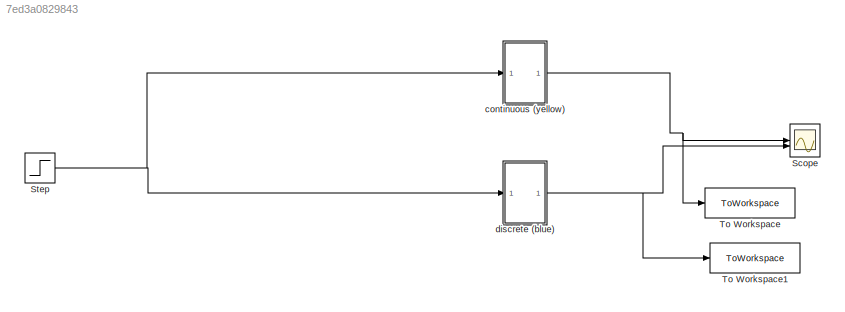
MODEL slx_7ed3a0829843
KIND model
CONFIG AbsTol = auto
CONFIG EnableMultiTasking = off
CONFIG FixedStep = auto
CONFIG MaxStep = auto
CONFIG MinStep = auto
CONFIG RelTol = 1e-3
CONFIG SampleTimeConstraint = Unconstrained
CONFIG SolverName = VariableStepAuto
CONFIG StartTime = 0.0
CONFIG StopTime = 100.0
BLOCK [Scope] Scope
  Floating = off
  NumInputPorts = 2
  ScopeSpecificationString = Simulink.scopes.TimeScopeBlockCfg('CurrentConfiguration', extmgr.ConfigurationSet(extmgr.Configuration('Core','General UI',true),extmgr.Configuration('Core','Source UI',true),extmgr.Configuration('Sources','WiredSimulink',true),extmgr.Configuration('Visuals','Time Domain',true,'SerializedDisplays',{struct('MinYLimReal','-0.02832','MaxYLimReal','0.25491','YLabelReal','','MinYLimMag','0.00000','MaxY...<+1403ch>
BLOCK [Step] Step
  After = 0.4
  SampleTime = 0
  Time = 10
BLOCK [ToWorkspace] To Workspace
  FixptAsFi = on
  MaxDataPoints = inf
  SampleTime = -1
  SaveFormat = Timeseries
  VariableName = continuous
BLOCK [ToWorkspace] To Workspace1
  FixptAsFi = on
  MaxDataPoints = inf
  SampleTime = -1
  SaveFormat = Timeseries
  VariableName = discrete
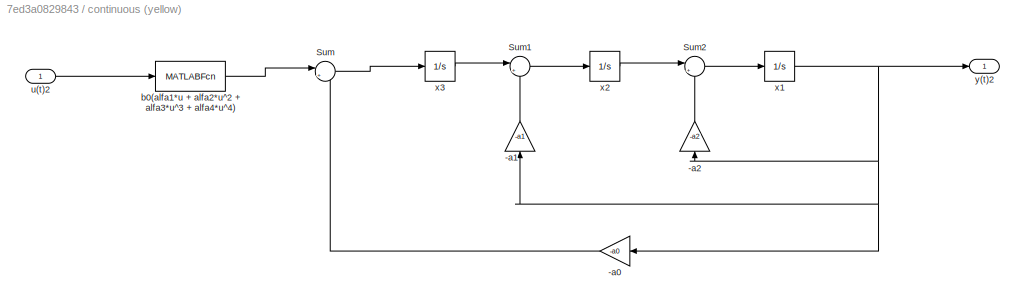
BLOCK [SubSystem] continuous (yellow)
BLOCK [Gain] continuous (yellow)/-a0
  Gain = -a0
BLOCK [Gain] continuous (yellow)/-a1
  Gain = -a1
  NameLocation = right
BLOCK [Gain] continuous (yellow)/-a2
  Gain = -a2
  NameLocation = right
BLOCK [Sum] continuous (yellow)/Sum
  Inputs = |++
BLOCK [Sum] continuous (yellow)/Sum1
  Inputs = |++
BLOCK [Sum] continuous (yellow)/Sum2
  Inputs = |++
BLOCK [MATLABFcn] continuous (yellow)/b0(alfa1*u + alfa2*u^2 + alfa3*u^3 + alfa4*u^4)
  MATLABFcn = b0*alfa1*u + b0*alfa2*u^2 + b0*alfa3*u^3 + b0*alfa4*u^4
BLOCK [Inport] continuous (yellow)/u(t)2
BLOCK [Integrator] continuous (yellow)/x1
BLOCK [Integrator] continuous (yellow)/x2
BLOCK [Integrator] continuous (yellow)/x3
BLOCK [Outport] continuous (yellow)/y(t)2
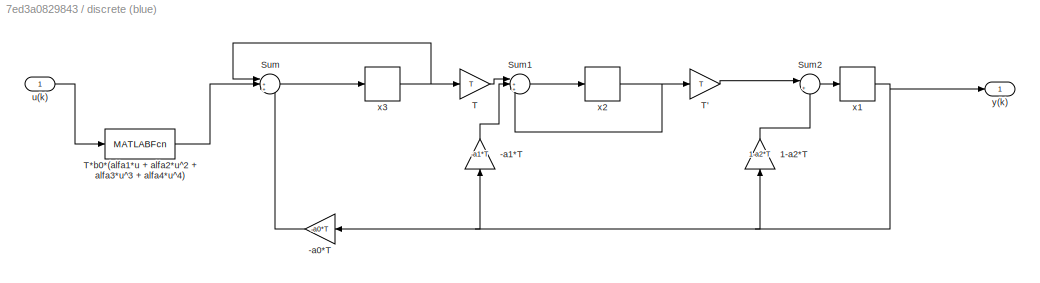
BLOCK [SubSystem] discrete (blue)
BLOCK [Gain] discrete (blue)/-a0*T
  Gain = -a0*T
BLOCK [Gain] discrete (blue)/-a1*T
  Gain = -a1*T
  NameLocation = right
BLOCK [Gain] discrete (blue)/1-a2*T
  Gain = 1-a2*T
  NameLocation = right
BLOCK [Sum] discrete (blue)/Sum
  Inputs = |+++
BLOCK [Sum] discrete (blue)/Sum1
  Inputs = |+++
BLOCK [Sum] discrete (blue)/Sum2
  Inputs = |++
BLOCK [Gain] discrete (blue)/T
  Gain = T
BLOCK [Gain] discrete (blue)/T'
  Gain = T
BLOCK [MATLABFcn] discrete (blue)/T*b0*(alfa1*u + alfa2*u^2 + alfa3*u^3 + alfa4*u^4)
  MATLABFcn = T*b0*alfa1*u + T*b0*alfa2*u^2 + T*b0*alfa3*u^3 + T*b0*alfa4*u^4
BLOCK [Inport] discrete (blue)/u(k)
BLOCK [Delay] discrete (blue)/x1
  DelayLength = 1
  InitialCondition = 0
  InputPortMap = u0
  SampleTime = T
BLOCK [Delay] discrete (blue)/x2
  DelayLength = 1
  InitialCondition = 0
  InputPortMap = u0
  SampleTime = T
BLOCK [Delay] discrete (blue)/x3
  DelayLength = 1
  InitialCondition = 0
  InputPortMap = u0
  SampleTime = T
BLOCK [Outport] discrete (blue)/y(k)
NET Step:1 -> continuous (yellow):1, discrete (blue):1
LINE continuous (yellow)/-a0:1 -> continuous (yellow)/Sum:2
LINE continuous (yellow)/-a1:1 -> continuous (yellow)/Sum1:2
LINE continuous (yellow)/-a2:1 -> continuous (yellow)/Sum2:2
LINE continuous (yellow)/Sum1:1 -> continuous (yellow)/x2:1
LINE continuous (yellow)/Sum2:1 -> continuous (yellow)/x1:1
LINE continuous (yellow)/Sum:1 -> continuous (yellow)/x3:1
LINE continuous (yellow)/b0(alfa1*u + alfa2*u^2 + alfa3*u^3 + alfa4*u^4):1 -> continuous (yellow)/Sum:1
LINE continuous (yellow)/u(t)2:1 -> continuous (yellow)/b0(alfa1*u + alfa2*u^2 + alfa3*u^3 + alfa4*u^4):1
NET continuous (yellow)/x1:1 -> continuous (yellow)/-a0:1, continuous (yellow)/-a1:1, continuous (yellow)/-a2:1, continuous (yellow)/y(t)2:1
LINE continuous (yellow)/x2:1 -> continuous (yellow)/Sum2:1
LINE continuous (yellow)/x3:1 -> continuous (yellow)/Sum1:1
NET continuous (yellow):1 -> Scope:1, To Workspace:1
LINE discrete (blue)/-a0*T:1 -> discrete (blue)/Sum:3
LINE discrete (blue)/-a1*T:1 -> discrete (blue)/Sum1:2
LINE discrete (blue)/1-a2*T:1 -> discrete (blue)/Sum2:2
LINE discrete (blue)/Sum1:1 -> discrete (blue)/x2:1
LINE discrete (blue)/Sum2:1 -> discrete (blue)/x1:1
LINE discrete (blue)/Sum:1 -> discrete (blue)/x3:1
LINE discrete (blue)/T':1 -> discrete (blue)/Sum2:1
LINE discrete (blue)/T*b0*(alfa1*u + alfa2*u^2 + alfa3*u^3 + alfa4*u^4):1 -> discrete (blue)/Sum:2
LINE discrete (blue)/T:1 -> discrete (blue)/Sum1:1
LINE discrete (blue)/u(k):1 -> discrete (blue)/T*b0*(alfa1*u + alfa2*u^2 + alfa3*u^3 + alfa4*u^4):1
NET discrete (blue)/x1:1 -> discrete (blue)/-a0*T:1, discrete (blue)/-a1*T:1, discrete (blue)/1-a2*T:1, discrete (blue)/y(k):1
NET discrete (blue)/x2:1 -> discrete (blue)/Sum1:3, discrete (blue)/T':1
NET discrete (blue)/x3:1 -> discrete (blue)/Sum:1, discrete (blue)/T:1
NET discrete (blue):1 -> Scope:2, To Workspace1:1
note: NET lines group one-source signal fan-out (src -> all destinations, sorted); 1:1 wires keep LINE
